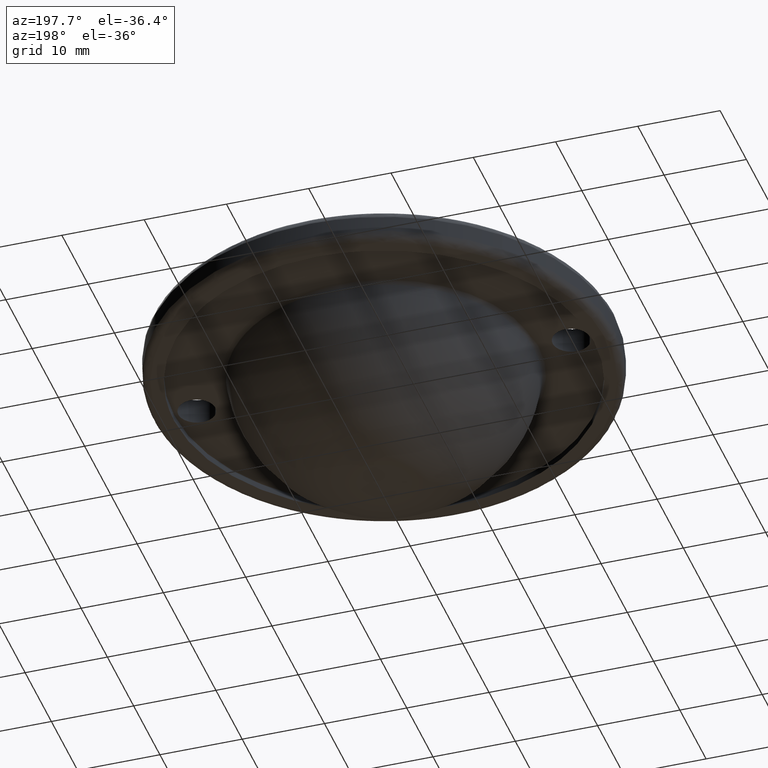
[diagram: clean part render]
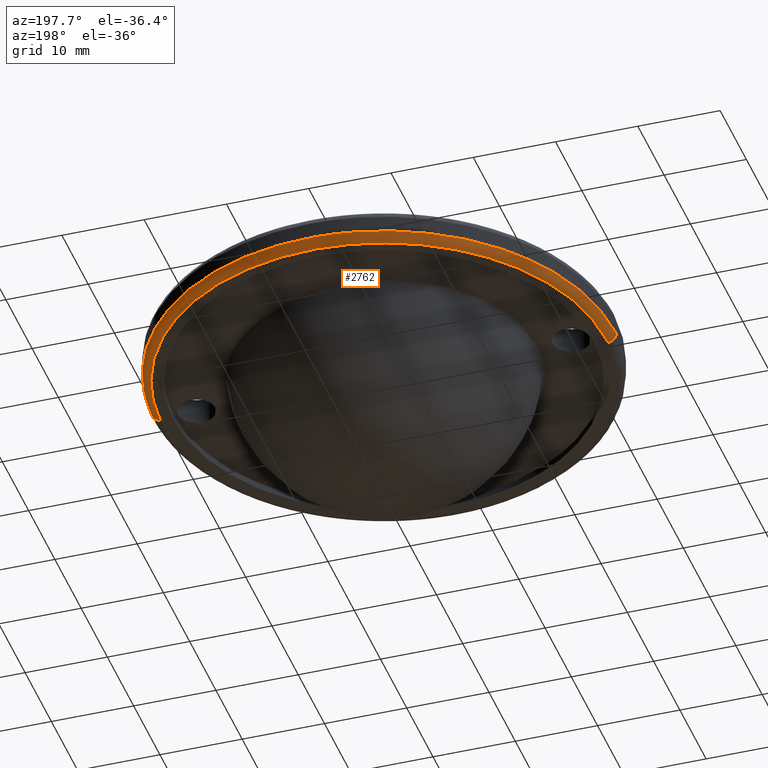
[diagram: same view with one face highlighted and labeled with its STEP entity id]
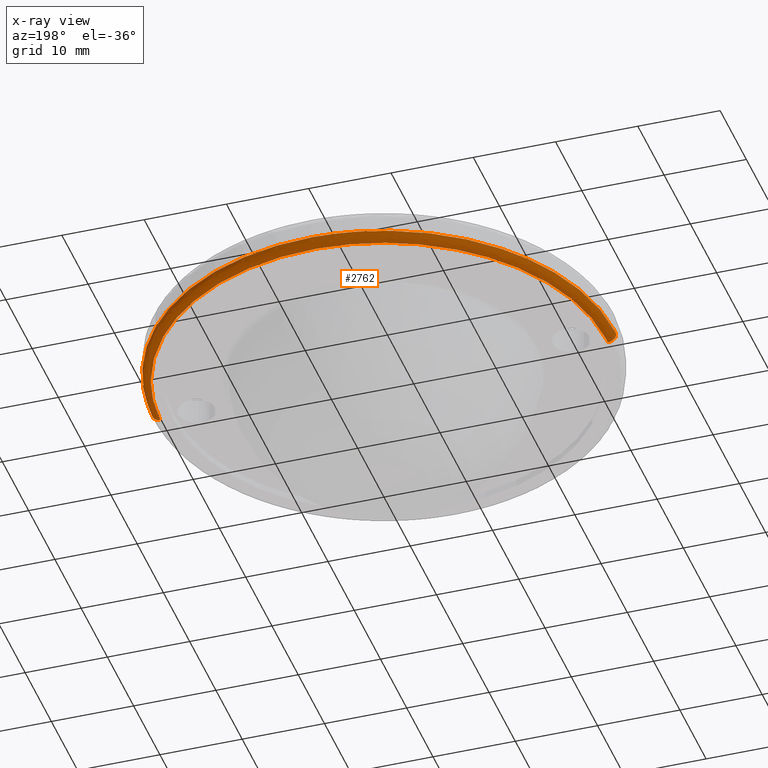
[diagram: x-ray of the same camera — body ghosted, the highlighted face saturated]
A machine part, auxiliary view. The second image highlights one B-rep face of the part: STEP entity #2762.
The next image is the same camera in x-ray: the body ghosted, the highlighted face saturated — about 0% of this face is hidden behind the body in this view.
In plain terms, the highlighted face is a freeform B-spline surface patch.
Its self-contained STEP definition (entity closure, byte-faithful):
#1603=CARTESIAN_POINT('',(-27.0,0.0,-8.500145E-014));
#1604=VERTEX_POINT('',#1603);
#1605=CARTESIAN_POINT('',(-0.339246348013218,26.997868655058848,-6.364123E-014));
#1606=VERTEX_POINT('',#1605);
#1607=CARTESIAN_POINT('',(-27.0,0.0,-8.500145E-014));
#1608=CARTESIAN_POINT('',(-27.000090106032260,1.424322751194610,-8.498736E-014));
#1609=CARTESIAN_POINT('',(-26.826196591372931,3.615553437999792,-8.482801E-014));
#1610=CARTESIAN_POINT('',(-26.235389160559709,6.516903708698696,-8.433176E-014));
#1611=CARTESIAN_POINT('',(-25.384472191226621,9.410109450681764,-8.362982E-014));
#1612=CARTESIAN_POINT('',(-24.133112161486601,12.282452929213161,-8.261129E-014));
#1613=CARTESIAN_POINT('',(-22.323112168031312,15.290010759933759,-8.114947E-014));
#1614=CARTESIAN_POINT('',(-20.351975466766788,17.859803683674361,-7.956452E-014));
#1615=CARTESIAN_POINT('',(-18.139459819242742,20.073138094131000,-7.779215E-014));
#1616=CARTESIAN_POINT('',(-15.744223505644481,21.994366331625141,-7.587813E-014));
#1617=CARTESIAN_POINT('',(-12.884192200597900,23.838029810257179,-7.359718E-014));
#1618=CARTESIAN_POINT('',(-9.580496045520393,25.339089507386330,-7.096864E-014));
#1619=CARTESIAN_POINT('',(-6.264878243664047,26.315658989528579,-6.833589E-014));
#1620=CARTESIAN_POINT('',(-3.350548888447670,26.845837240246901,-6.602504E-014));
#1621=CARTESIAN_POINT('',(-1.380012280403961,26.984818403254138,-6.446473E-014));
#1622=CARTESIAN_POINT('',(-0.339246348013218,26.997868655058848,-6.364123E-014));
#1623=B_SPLINE_CURVE_WITH_KNOTS('',3,(#1607,#1608,#1609,#1610,#1611,#1612,#1613,#1614,#1615,#1616,#1617,#1618,#1619,#1620,#1621,#1622),.UNSPECIFIED.,.F.,.U.,(4,1,1,1,1,1,1,1,1,1,1,1,1,4),(0.000000016638459,4.272955167803708,6.573798550198042,8.874625528825149,13.311950818490960,15.941478356976161,19.392710992599021,23.008273570269509,25.309122742975710,28.596015173391930,33.197683213029677,36.155900712827233,38.949765170367620,42.072310495847162),.UNSPECIFIED.);
#1624=EDGE_CURVE('',#1604,#1606,#1623,.T.);
#1626=CARTESIAN_POINT('',(26.991473111971530,0.678512577023078,-4.228107E-014));
#1627=VERTEX_POINT('',#1626);
#1628=CARTESIAN_POINT('',(-0.339246348013218,26.997868655058848,-6.364123E-014));
#1629=CARTESIAN_POINT('',(0.591962505981692,27.009584682815849,-6.290442E-014));
#1630=CARTESIAN_POINT('',(2.565217566908915,26.932234264478769,-6.134411E-014));
#1631=CARTESIAN_POINT('',(5.387114534092193,26.509408131790970,-5.911586E-014));
#1632=CARTESIAN_POINT('',(7.987512470821757,25.830816134903500,-5.706538E-014));
#1633=CARTESIAN_POINT('',(10.514520499130050,24.918245759065709,-5.507530E-014));
#1634=CARTESIAN_POINT('',(12.939138335575850,23.756013264103480,-5.316869E-014));
#1635=CARTESIAN_POINT('',(15.598597293673960,22.112608781767630,-5.108108E-014));
#1636=CARTESIAN_POINT('',(18.397819122656500,19.898883176741329,-4.888858E-014));
#1637=CARTESIAN_POINT('',(20.839722730413222,17.290788039450081,-4.698267E-014));
#1638=CARTESIAN_POINT('',(22.724163478364382,14.660162521290840,-4.551801E-014));
#1639=CARTESIAN_POINT('',(23.987069735661478,12.476060159168361,-4.454062E-014));
#1640=CARTESIAN_POINT('',(25.045266932720459,10.186536180281770,-4.372622E-014));
#1641=CARTESIAN_POINT('',(26.037640215754159,7.396020816568822,-4.296888E-014));
#1642=CARTESIAN_POINT('',(26.756532373061610,4.179727155247660,-4.243213E-014));
#1643=CARTESIAN_POINT('',(26.963964559542369,1.773796144989424,-4.229194E-014));
#1644=CARTESIAN_POINT('',(26.991473111971530,0.678512577023078,-4.228107E-014));
#1645=B_SPLINE_CURVE_WITH_KNOTS('',3,(#1628,#1629,#1630,#1631,#1632,#1633,#1634,#1635,#1636,#1637,#1638,#1639,#1640,#1641,#1642,#1643,#1644),.UNSPECIFIED.,.F.,.U.,(4,1,1,1,1,1,1,1,1,1,1,1,1,1,4),(0.000000016573800,2.793851392846946,5.916394422498108,8.545917444340539,10.846749923211330,13.969300101236900,16.598814870894881,20.214423896059721,24.651680808361931,27.281203395256490,29.910726483436541,32.211558390172193,34.841078792573263,38.785344321026102,42.072237033319688),.UNSPECIFIED.);
#1646=EDGE_CURVE('',#1606,#1627,#1645,.T.);
#1678=CARTESIAN_POINT('',(-26.991473111971530,-0.678512577023078,-4.226545E-014));
#1679=VERTEX_POINT('',#1678);
#1698=CARTESIAN_POINT('',(-26.991473111971530,-0.678512577023078,-4.226545E-014));
#1699=CARTESIAN_POINT('',(-26.997157419102859,-0.452390704440170,-5.650995E-014));
#1700=CARTESIAN_POINT('',(-27.000000058523380,-0.226192854694193,-7.075698E-014));
#1701=CARTESIAN_POINT('',(-27.0,0.0,-8.500145E-014));
#1702=B_SPLINE_CURVE_WITH_KNOTS('',3,(#1698,#1699,#1700,#1701),.UNSPECIFIED.,.F.,.U.,(4,4),(1.101697E-011,0.678585129410711),.UNSPECIFIED.);
#1703=EDGE_CURVE('',#1679,#1604,#1702,.T.);
#2582=CARTESIAN_POINT('',(27.991157299932389,0.703642672413588,0.999999999422233));
#2583=VERTEX_POINT('',#2582);
#2621=CARTESIAN_POINT('',(-27.991157299932389,-0.703642672413589,0.999999999422233));
#2622=VERTEX_POINT('',#2621);
#2641=CARTESIAN_POINT('',(-27.991157299932389,-0.703642672413589,0.999999999422233));
#2642=CARTESIAN_POINT('',(-27.991196382626139,-0.703643654876646,0.901822474959080));
#2643=CARTESIAN_POINT('',(-27.966869333285810,-0.703032120677655,0.738223139516782));
#2644=CARTESIAN_POINT('',(-27.869372883013231,-0.700581251569449,0.502762933986242));
#2645=CARTESIAN_POINT('',(-27.734011234963781,-0.697178525820500,0.315409013344144));
#2646=CARTESIAN_POINT('',(-27.563986358118949,-0.692904434636912,0.172359920448818));
#2647=CARTESIAN_POINT('',(-27.326690272351719,-0.686939277496304,0.041616382841325));
#2648=CARTESIAN_POINT('',(-27.130545230826719,-0.682008576716225,-0.000163326986299));
#2649=CARTESIAN_POINT('',(-26.991473111971530,-0.678512577023078,-4.226545E-014));
#2650=B_SPLINE_CURVE_WITH_KNOTS('',3,(#2641,#2642,#2643,#2644,#2645,#2646,#2647,#2648,#2649),.UNSPECIFIED.,.F.,.U.,(4,1,1,1,1,1,4),(0.000000166046880,0.294525564857503,0.490892555852758,0.760897717409196,0.981756487101877,1.153581067075488,1.570835743280028),.UNSPECIFIED.);
#2651=EDGE_CURVE('',#2622,#1679,#2650,.T.);
#2656=CARTESIAN_POINT('',(27.991157299932389,0.703642672413588,0.999999999422233));
#2657=CARTESIAN_POINT('',(27.991252363682769,0.703645062130607,0.877276031601767));
#2658=CARTESIAN_POINT('',(27.950000112751169,0.702608061634139,0.656425814952165));
#2659=CARTESIAN_POINT('',(27.807331343750391,0.699021649228756,0.404609024461514));
#2660=CARTESIAN_POINT('',(27.625991736353050,0.694463127960975,0.214073764122687));
#2661=CARTESIAN_POINT('',(27.367578233544940,0.687967120466913,0.050328507557984));
#2662=CARTESIAN_POINT('',(27.130537539425632,0.682008383369520,-0.000180518615067));
#2663=CARTESIAN_POINT('',(26.991473111971530,0.678512577023078,-4.228107E-014));
#2664=B_SPLINE_CURVE_WITH_KNOTS('',3,(#2656,#2657,#2658,#2659,#2660,#2661,#2662,#2663),.UNSPECIFIED.,.F.,.U.,(4,1,1,1,1,4),(0.000000166046303,0.368163278459895,0.662717993602694,0.859041832744517,1.153581067075604,1.570835743280031),.UNSPECIFIED.);
#2665=EDGE_CURVE('',#2583,#1627,#2664,.T.);
#2670=CARTESIAN_POINT('',(-27.969054532315990,-1.486054939225022,1.069724184544375));
#2671=CARTESIAN_POINT('',(-27.978832178102078,-1.097096691024333,1.069724184544375));
#2672=CARTESIAN_POINT('',(-28.692305889625569,27.285142862642477,1.069724184544375));
#2673=CARTESIAN_POINT('',(-0.703581513491546,27.988724376134019,1.069724184544375));
#2674=CARTESIAN_POINT('',(27.285142862642477,28.692305889625569,1.069724184544375));
#2675=CARTESIAN_POINT('',(27.998616574165716,0.310066335968937,1.069724184544375));
#2676=CARTESIAN_POINT('',(28.008394219951537,-0.078891912221809,1.069724184544375));
#2677=CARTESIAN_POINT('',(-28.049145816946012,-1.490310358333872,-0.077335681492804));
#2678=CARTESIAN_POINT('',(-28.058951461683964,-1.100238301808708,-0.077335681492804));
#2679=CARTESIAN_POINT('',(-28.774468253571143,27.363275719820667,-0.077335681492804));
#2680=CARTESIAN_POINT('',(-0.705596266875232,28.068871986695910,-0.077335681492804));
#2681=CARTESIAN_POINT('',(27.363275719820667,28.774468253571143,-0.077335681492804));
#2682=CARTESIAN_POINT('',(28.078792511707601,0.310954231951962,-0.077335681492804));
#2683=CARTESIAN_POINT('',(28.088598156445293,-0.079117824563232,-0.077335681492804));
#2684=CARTESIAN_POINT('',(-26.903224162721635,-1.429425120605959,0.002407649449966));
#2685=CARTESIAN_POINT('',(-26.912629207002372,-1.055289093619703,0.002407649449966));
#2686=CARTESIAN_POINT('',(-27.598914228655403,26.245374647806184,0.002407649449966));
#2687=CARTESIAN_POINT('',(-0.676769790424612,26.922144438230802,0.002407649449966));
#2688=CARTESIAN_POINT('',(26.245374647806184,27.598914228655403,0.002407649449966));
#2689=CARTESIAN_POINT('',(26.931659669458991,0.298250487239309,0.002407649449966));
#2690=CARTESIAN_POINT('',(26.941064713739475,-0.075885539737383,0.002407649449966));
#2698=(BOUNDED_SURFACE()B_SPLINE_SURFACE(2,2,((#2670,#2677,#2684),(#2671,#2678,#2685),(#2672,#2679,#2686),(#2673,#2680,#2687),(#2674,#2681,#2688),(#2675,#2682,#2689),(#2676,#2683,#2690)),.UNSPECIFIED.,.F.,.F.,.U.)B_SPLINE_SURFACE_WITH_KNOTS((3,1,2,1,3),(3,3),(0.0,0.927757734268554,47.315644446485962,93.703531158703356,94.631288892947765),(0.0,1.822727139685404),.UNSPECIFIED.)GEOMETRIC_REPRESENTATION_ITEM()RATIONAL_B_SPLINE_SURFACE(((0.921564716010973,0.606435493452483,0.926697837806714),(0.916228828698889,0.602924213779020,0.921332229565665),(0.644098575789570,0.423848950436964,0.647686209279166),(0.910892941386805,0.599412934105556,0.915966621324616),(0.644098575789570,0.423848950436964,0.647686209279166),(0.916228828698750,0.602924213778928,0.921332229565525),(0.921564716010695,0.606435493452301,0.926697837806434)))REPRESENTATION_ITEM('')SURFACE());
#2699=CARTESIAN_POINT('',(-28.0,0.0,0.999999999999915));
#2700=VERTEX_POINT('',#2699);
#2701=CARTESIAN_POINT('',(-20.457895192851080,19.117388008781969,0.999999999919634));
#2702=VERTEX_POINT('',#2701);
#2703=CARTESIAN_POINT('',(-28.0,0.0,0.999999999999915));
#2704=CARTESIAN_POINT('',(-28.000022435522990,1.095993319414913,0.999999999999773));
#2705=CARTESIAN_POINT('',(-27.864713275602760,3.397579068496827,0.999999999998079));
#2706=CARTESIAN_POINT('',(-27.298141159251159,6.475973745247139,0.999999999991832));
#2707=CARTESIAN_POINT('',(-26.339302118854750,9.681681385425719,0.999999999981535));
#2708=CARTESIAN_POINT('',(-25.040208044727219,12.711025755383741,0.999999999967731));
#2709=CARTESIAN_POINT('',(-23.045238504587111,16.060044815464369,0.999999999946720));
#2710=CARTESIAN_POINT('',(-21.430754774025250,18.076434715074122,0.999999999929803));
#2711=CARTESIAN_POINT('',(-20.457895192851080,19.117388008781969,0.999999999919634));
#2712=B_SPLINE_CURVE_WITH_KNOTS('',3,(#2703,#2704,#2705,#2706,#2707,#2708,#2709,#2710,#2711),.UNSPECIFIED.,.F.,.U.,(4,1,1,1,1,1,4),(5.654382E-009,3.287983040880121,6.904773750189815,9.370764411660591,13.316340081209230,16.768735637991480,21.043115938667110),.UNSPECIFIED.);
#2713=EDGE_CURVE('',#2700,#2702,#2712,.T.);
#2714=ORIENTED_EDGE('',*,*,#2713,.T.);
#2715=CARTESIAN_POINT('',(-0.351812190865986,27.997789701731069,0.999999999711073));
#2716=VERTEX_POINT('',#2715);
#2717=CARTESIAN_POINT('',(-20.457895192851080,19.117388008781969,0.999999999919634));
#2718=CARTESIAN_POINT('',(-19.654691569612130,19.976942688963231,0.999999999911238));
#2719=CARTESIAN_POINT('',(-17.768280962048291,21.756448903301841,0.999999999891545));
#2720=CARTESIAN_POINT('',(-14.834597610978561,23.840128233336880,0.999999999861015));
#2721=CARTESIAN_POINT('',(-11.505351003177029,25.608994865018101,0.999999999826445));
#2722=CARTESIAN_POINT('',(-7.975999204879838,26.946990289591170,0.999999999789858));
#2723=CARTESIAN_POINT('',(-4.114023127025673,27.787191071476752,0.999999999749901));
#2724=CARTESIAN_POINT('',(-1.528145161197727,27.983037528619182,0.999999999723227));
#2725=CARTESIAN_POINT('',(-0.351812190865986,27.997789701731069,0.999999999711073));
#2726=B_SPLINE_CURVE_WITH_KNOTS('',3,(#2717,#2718,#2719,#2720,#2721,#2722,#2723,#2724,#2725),.UNSPECIFIED.,.F.,.U.,(4,1,1,1,1,1,4),(4.366218E-009,3.529279327382174,7.764434363796157,10.764331065064169,14.822993009828650,19.058148046242842,22.587427369259281),.UNSPECIFIED.);
#2727=EDGE_CURVE('',#2702,#2716,#2726,.T.);
#2728=ORIENTED_EDGE('',*,*,#2727,.T.);
#2729=CARTESIAN_POINT('',(-0.351812190865986,27.997789701731069,0.999999999711073));
#2730=CARTESIAN_POINT('',(1.238760077375580,28.017902782606281,0.999999999694661));
#2731=CARTESIAN_POINT('',(4.195793551238293,27.802484063170940,0.999999999664191));
#2732=CARTESIAN_POINT('',(7.910967690350383,26.929050229490031,0.999999999625974));
#2733=CARTESIAN_POINT('',(10.796144536927530,25.877097852475760,0.999999999596347));
#2734=CARTESIAN_POINT('',(13.367714849794091,24.663646166653120,0.999999999569974));
#2735=CARTESIAN_POINT('',(15.894841114104191,23.123195740495639,0.999999999544118));
#2736=CARTESIAN_POINT('',(18.636128943632961,20.995580071755128,0.999999999516103));
#2737=CARTESIAN_POINT('',(21.255774629289071,18.379056767784590,0.999999999489424));
#2738=CARTESIAN_POINT('',(23.500626578256920,15.363357370610910,0.999999999466652));
#2739=CARTESIAN_POINT('',(25.005995536465409,12.685037226640670,0.999999999451483));
#2740=CARTESIAN_POINT('',(26.074159932217590,10.298120178466609,0.999999999440760));
#2741=CARTESIAN_POINT('',(26.842076779365598,8.096190550700355,0.999999999433129));
#2742=CARTESIAN_POINT('',(27.663244239941470,4.843808976172079,0.999999999425078));
#2743=CARTESIAN_POINT('',(27.948533070509711,2.407435660017702,0.999999999422452));
#2744=CARTESIAN_POINT('',(27.991157299932389,0.703642672413588,0.999999999422233));
#2745=B_SPLINE_CURVE_WITH_KNOTS('',3,(#2729,#2730,#2731,#2732,#2733,#2734,#2735,#2736,#2737,#2738,#2739,#2740,#2741,#2742,#2743,#2744),.UNSPECIFIED.,.F.,.U.,(4,1,1,1,1,1,1,1,1,1,1,1,1,4),(0.000000014222302,4.772079842312714,8.862434803497656,11.418913728313530,13.975392318377720,17.384034481572218,20.281368599546429,24.371684308733400,28.462062904118049,31.529831590956132,33.575011926433859,36.301915115926249,38.517539127252427,43.630469196893827),.UNSPECIFIED.);
#2746=EDGE_CURVE('',#2716,#2583,#2745,.T.);
#2747=ORIENTED_EDGE('',*,*,#2746,.T.);
#2748=ORIENTED_EDGE('',*,*,#2665,.T.);
#2749=ORIENTED_EDGE('',*,*,#1646,.F.);
#2750=ORIENTED_EDGE('',*,*,#1624,.F.);
#2751=ORIENTED_EDGE('',*,*,#1703,.F.);
#2752=ORIENTED_EDGE('',*,*,#2651,.F.);
#2753=CARTESIAN_POINT('',(-27.991157299932389,-0.703642672413589,0.999999999422233));
#2754=CARTESIAN_POINT('',(-27.997052137414379,-0.469145915684951,0.999999999614782));
#2755=CARTESIAN_POINT('',(-28.000000060233528,-0.234570367818497,0.999999999807366));
#2756=CARTESIAN_POINT('',(-28.0,0.0,0.999999999999915));
#2757=B_SPLINE_CURVE_WITH_KNOTS('',3,(#2753,#2754,#2755,#2756),.UNSPECIFIED.,.F.,.U.,(4,4),(1.142464E-011,0.703717911943926),.UNSPECIFIED.);
#2758=EDGE_CURVE('',#2622,#2700,#2757,.T.);
#2759=ORIENTED_EDGE('',*,*,#2758,.T.);
#2760=EDGE_LOOP('',(#2714,#2728,#2747,#2748,#2749,#2750,#2751,#2752,#2759));
#2761=FACE_OUTER_BOUND('',#2760,.T.);
#2762=ADVANCED_FACE('',(#2761),#2698,.T.);